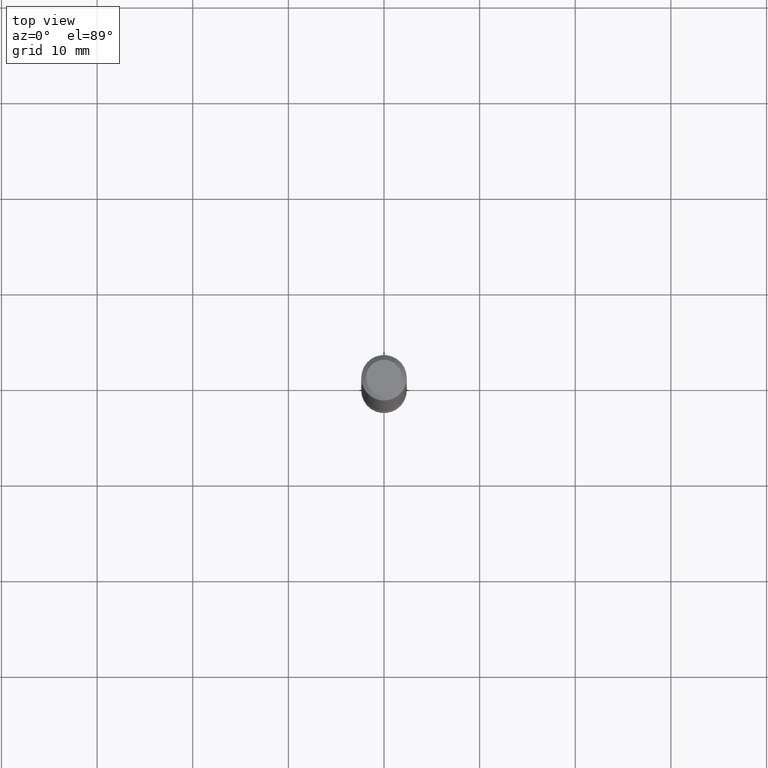
[diagram: clean part render]
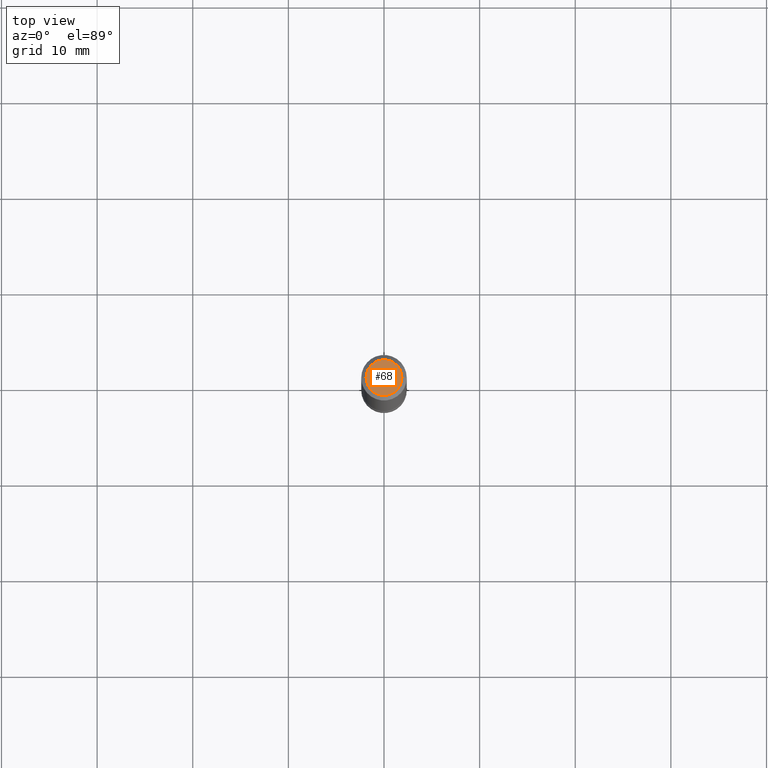
[diagram: same view with one face highlighted and labeled with its STEP entity id]
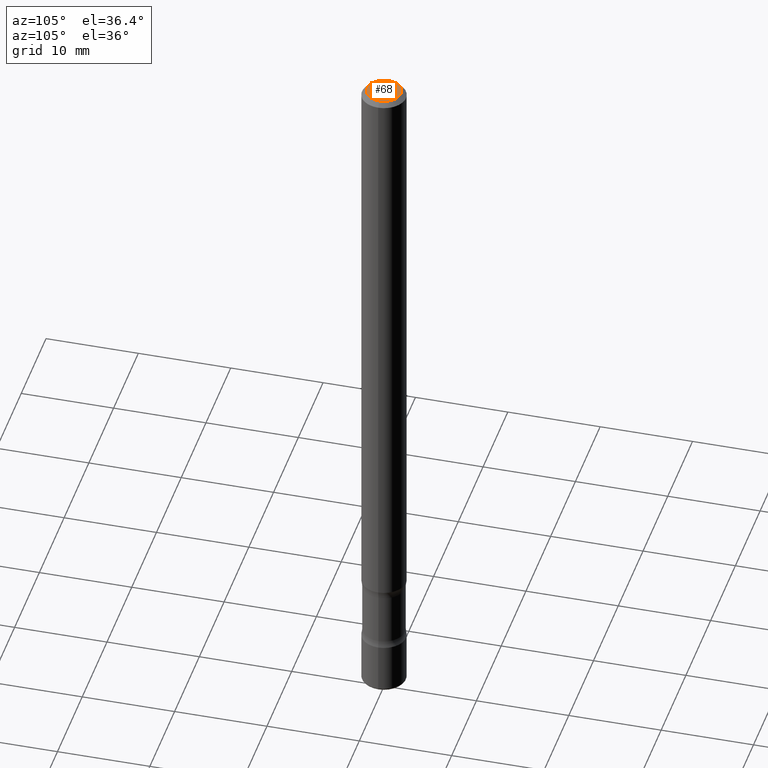
[diagram: same view with one face highlighted and labeled with its STEP entity id]
A machine part, top view. The second image highlights one B-rep face of the part: STEP entity #68.
A second angle (auxiliary view) of the same face is appended — the face is thin or edge-on in the first view.
In plain terms, the highlighted planar face has unit normal (0, -0, -1).
Its self-contained STEP definition (entity closure, byte-faithful):
#5 = DIRECTION ( 'NONE',  ( -1.000000000000000000, 6.982962677686265922E-15, -4.876176775795935793E-29 ) ) ;
#36 = DIRECTION ( 'NONE',  ( -2.445468806185136597E-29, 3.491481338843145583E-15, 1.000000000000000000 ) ) ;
#58 = DIRECTION ( 'NONE',  ( 2.438088387897960049E-29, -3.491481338843145188E-15, -1.000000000000000000 ) ) ;
#68 = ADVANCED_FACE ( 'NONE', ( #493 ), #192, .F. ) ;
#136 = AXIS2_PLACEMENT_3D ( 'NONE', #627, #36, #410 ) ;
#192 = PLANE ( 'NONE',  #613 ) ;
#288 = CIRCLE ( 'NONE', #136, 0.07374999999999973244 ) ;
#356 = CIRCLE ( 'NONE', #375, 0.07374999999999973244 ) ;
#361 = EDGE_CURVE ( 'NONE', #766, #580, #288, .T. ) ;
#370 = ORIENTED_EDGE ( 'NONE', *, *, #361, .T. ) ;
#375 = AXIS2_PLACEMENT_3D ( 'NONE', #721, #665, #608 ) ;
#410 = DIRECTION ( 'NONE',  ( 1.000000000000000000, -6.982962677686265922E-15, 4.875869617646602903E-29 ) ) ;
#493 = FACE_OUTER_BOUND ( 'NONE', #534, .T. ) ;
#498 = CARTESIAN_POINT ( 'NONE',  ( 5.149934974793602175E-16, 0.07374999999999973244, -2.660337737198818496E-16 ) ) ;
#534 = EDGE_LOOP ( 'NONE', ( #702, #370 ) ) ;
#580 = VERTEX_POINT ( 'NONE', #791 ) ;
#592 = EDGE_CURVE ( 'NONE', #580, #766, #356, .T. ) ;
#608 = DIRECTION ( 'NONE',  ( 1.000000000000000000, -6.982962677686265922E-15, 4.875869617646602903E-29 ) ) ;
#613 = AXIS2_PLACEMENT_3D ( 'NONE', #498, #58, #5 ) ;
#627 = CARTESIAN_POINT ( 'NONE',  ( 4.175405657340879278E-46, -5.961372681521788801E-32, -1.707404996040164512E-17 ) ) ;
#665 = DIRECTION ( 'NONE',  ( -2.445468806185136597E-29, 3.491481338843145583E-15, 1.000000000000000000 ) ) ;
#702 = ORIENTED_EDGE ( 'NONE', *, *, #592, .T. ) ;
#705 = CARTESIAN_POINT ( 'NONE',  ( 0.07374999999999973244, -6.094815207017955281E-16, -1.707404996039771314E-17 ) ) ;
#721 = CARTESIAN_POINT ( 'NONE',  ( 4.175405657340879278E-46, -5.961372681521788801E-32, -1.707404996040164512E-17 ) ) ;
#766 = VERTEX_POINT ( 'NONE', #705 ) ;
#791 = CARTESIAN_POINT ( 'NONE',  ( -0.07374999999999973244, 5.499083108677914721E-16, -1.707404996040536755E-17 ) ) ;